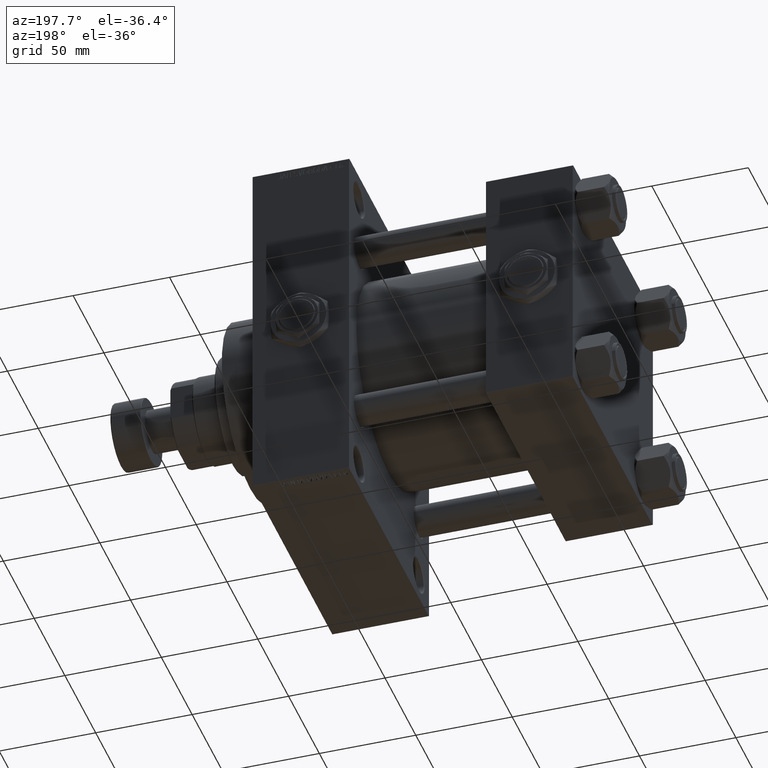
[diagram: clean part render]
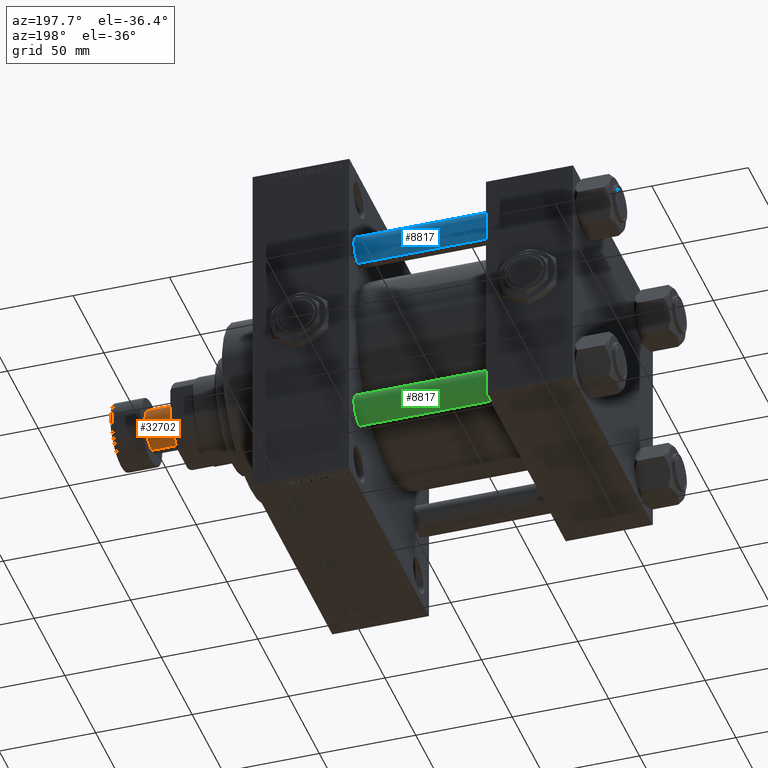
[diagram: same view with three faces highlighted in distinct colors, each labeled with its STEP entity id]
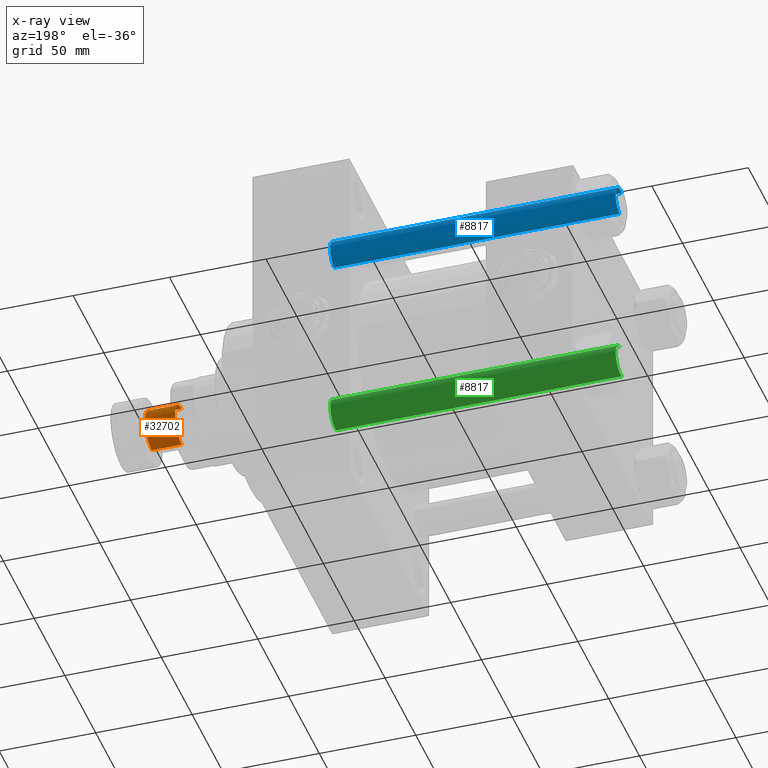
[diagram: x-ray of the same camera — body ghosted, the three highlighted faces saturated]
A machine part, auxiliary view with three faces highlighted in distinct colors.
The next image is the same camera in x-ray (body ghosted, the three faces saturated) — at least one of them is partly hidden behind the body in this view.
Their STEP definitions:

[orange] entity #32702 — the highlighted cylindrical surface (edge-blend (fillet) strip) has radius 11 mm, axis along (1, 0, 0).
#1773 = CARTESIAN_POINT ( 'NONE',  ( -11.00000000000000000, 1.347111479062088405E-15, -16.00000000000000000 ) ) ;
#5446 = CARTESIAN_POINT ( 'NONE',  ( 11.00000000000000000, 0.000000000000000000, -31.50000000000000000 ) ) ;
#5500 = CARTESIAN_POINT ( 'NONE',  ( 0.000000000000000000, 0.000000000000000000, -31.50000000000000000 ) ) ;
#6845 = CIRCLE ( 'NONE', #24676, 11.00000000000000000 ) ;
#10215 = DIRECTION ( 'NONE',  ( 0.000000000000000000, 0.000000000000000000, -1.000000000000000000 ) ) ;
#10941 = ORIENTED_EDGE ( 'NONE', *, *, #30322, .T. ) ;
#15684 = DIRECTION ( 'NONE',  ( -0.000000000000000000, -0.000000000000000000, 1.000000000000000000 ) ) ;
#16969 = EDGE_CURVE ( 'NONE', #37035, #18162, #24740, .T. ) ;
#18162 = VERTEX_POINT ( 'NONE', #35306 ) ;
#20928 = DIRECTION ( 'NONE',  ( -0.000000000000000000, -0.000000000000000000, 1.000000000000000000 ) ) ;
#21878 = DIRECTION ( 'NONE',  ( -1.000000000000000000, 0.000000000000000000, 0.000000000000000000 ) ) ;
#21950 = VECTOR ( 'NONE', #15684, 1000.000000000000000 ) ;
#21988 = DIRECTION ( 'NONE',  ( 1.000000000000000000, 0.000000000000000000, 0.000000000000000000 ) ) ;
#22820 = CIRCLE ( 'NONE', #25244, 11.00000000000000000 ) ;
#23556 = CARTESIAN_POINT ( 'NONE',  ( -11.00000000000000000, 1.347111479062088405E-15, -31.50000000000000000 ) ) ;
#24676 = AXIS2_PLACEMENT_3D ( 'NONE', #45762, #33574, #41693 ) ;
#24740 = LINE ( 'NONE', #5446, #26452 ) ;
#25244 = AXIS2_PLACEMENT_3D ( 'NONE', #25937, #10215, #21878 ) ;
#25797 = CYLINDRICAL_SURFACE ( 'NONE', #29310, 11.00000000000000000 ) ;
#25937 = CARTESIAN_POINT ( 'NONE',  ( 0.000000000000000000, 0.000000000000000000, -16.00000000000000000 ) ) ;
#26452 = VECTOR ( 'NONE', #20928, 1000.000000000000000 ) ;
#27407 = VERTEX_POINT ( 'NONE', #1773 ) ;
#27539 = ORIENTED_EDGE ( 'NONE', *, *, #16969, .F. ) ;
#28937 = CARTESIAN_POINT ( 'NONE',  ( -11.00000000000000000, 1.347111479062088405E-15, -31.50000000000000000 ) ) ;
#29310 = AXIS2_PLACEMENT_3D ( 'NONE', #5500, #29858, #21988 ) ;
#29858 = DIRECTION ( 'NONE',  ( -0.000000000000000000, -0.000000000000000000, 1.000000000000000000 ) ) ;
#30322 = EDGE_CURVE ( 'NONE', #41272, #27407, #35232, .T. ) ;
#32155 = EDGE_CURVE ( 'NONE', #27407, #18162, #22820, .T. ) ;
#32702 = ADVANCED_FACE ( 'NONE', ( #45096 ), #25797, .T. ) ;
#33574 = DIRECTION ( 'NONE',  ( 0.000000000000000000, 0.000000000000000000, -1.000000000000000000 ) ) ;
#35232 = LINE ( 'NONE', #23556, #21950 ) ;
#35306 = CARTESIAN_POINT ( 'NONE',  ( 11.00000000000000000, 0.000000000000000000, -16.00000000000000000 ) ) ;
#35641 = ORIENTED_EDGE ( 'NONE', *, *, #48666, .F. ) ;
#35922 = CARTESIAN_POINT ( 'NONE',  ( 11.00000000000000000, 0.000000000000000000, -31.50000000000000000 ) ) ;
#37035 = VERTEX_POINT ( 'NONE', #35922 ) ;
#41272 = VERTEX_POINT ( 'NONE', #28937 ) ;
#41693 = DIRECTION ( 'NONE',  ( -1.000000000000000000, 0.000000000000000000, 0.000000000000000000 ) ) ;
#42316 = EDGE_LOOP ( 'NONE', ( #35641, #10941, #42334, #27539 ) ) ;
#42334 = ORIENTED_EDGE ( 'NONE', *, *, #32155, .T. ) ;
#45096 = FACE_OUTER_BOUND ( 'NONE', #42316, .T. ) ;
#45762 = CARTESIAN_POINT ( 'NONE',  ( 0.000000000000000000, 0.000000000000000000, -31.50000000000000000 ) ) ;
#48666 = EDGE_CURVE ( 'NONE', #41272, #37035, #6845, .T. ) ;

[blue] entity #8817 — the highlighted cylindrical surface (edge-blend (fillet) strip) has radius 8 mm, axis along (-1, -0, 0).
#921 = CIRCLE ( 'NONE', #5805, 8.000000000000000000 ) ;
#1799 = AXIS2_PLACEMENT_3D ( 'NONE', #43676, #24625, #39866 ) ;
#1893 = LINE ( 'NONE', #24505, #22910 ) ;
#3998 = VERTEX_POINT ( 'NONE', #42510 ) ;
#5805 = AXIS2_PLACEMENT_3D ( 'NONE', #39533, #32403, #28108 ) ;
#6159 = VERTEX_POINT ( 'NONE', #26197 ) ;
#7088 = LINE ( 'NONE', #29692, #18124 ) ;
#8399 = CYLINDRICAL_SURFACE ( 'NONE', #1799, 8.000000000000000000 ) ;
#8817 = ADVANCED_FACE ( 'NONE', ( #46985 ), #8399, .T. ) ;
#8984 = EDGE_CURVE ( 'NONE', #3998, #47586, #1893, .T. ) ;
#10899 = DIRECTION ( 'NONE',  ( -0.000000000000000000, -0.000000000000000000, -1.000000000000000000 ) ) ;
#11290 = CARTESIAN_POINT ( 'NONE',  ( 8.000000000000000000, 9.797174393178825657E-16, 0.5000000000000281997 ) ) ;
#15142 = CARTESIAN_POINT ( 'NONE',  ( 0.000000000000000000, 0.000000000000000000, 0.5000000000000281997 ) ) ;
#18124 = VECTOR ( 'NONE', #10899, 1000.000000000000000 ) ;
#18219 = CARTESIAN_POINT ( 'NONE',  ( -8.000000000000000000, 0.000000000000000000, 0.5000000000000281997 ) ) ;
#22910 = VECTOR ( 'NONE', #32369, 1000.000000000000000 ) ;
#24433 = CIRCLE ( 'NONE', #46330, 8.000000000000000000 ) ;
#24505 = CARTESIAN_POINT ( 'NONE',  ( 8.000000000000000000, 9.797174393178825657E-16, 149.0000000000000000 ) ) ;
#24625 = DIRECTION ( 'NONE',  ( -0.000000000000000000, -0.000000000000000000, -1.000000000000000000 ) ) ;
#26167 = ORIENTED_EDGE ( 'NONE', *, *, #38403, .T. ) ;
#26197 = CARTESIAN_POINT ( 'NONE',  ( -8.000000000000000000, 0.000000000000000000, 148.5000000000000000 ) ) ;
#28108 = DIRECTION ( 'NONE',  ( 1.000000000000000000, 0.000000000000000000, 0.000000000000000000 ) ) ;
#28411 = ORIENTED_EDGE ( 'NONE', *, *, #42596, .T. ) ;
#29692 = CARTESIAN_POINT ( 'NONE',  ( -8.000000000000000000, 0.000000000000000000, 149.0000000000000000 ) ) ;
#32369 = DIRECTION ( 'NONE',  ( -0.000000000000000000, -0.000000000000000000, -1.000000000000000000 ) ) ;
#32403 = DIRECTION ( 'NONE',  ( 0.000000000000000000, 0.000000000000000000, -1.000000000000000000 ) ) ;
#38403 = EDGE_CURVE ( 'NONE', #47586, #46265, #24433, .T. ) ;
#39533 = CARTESIAN_POINT ( 'NONE',  ( 0.000000000000000000, 0.000000000000000000, 148.5000000000000000 ) ) ;
#39866 = DIRECTION ( 'NONE',  ( -1.000000000000000000, 0.000000000000000000, 0.000000000000000000 ) ) ;
#40702 = ORIENTED_EDGE ( 'NONE', *, *, #47004, .F. ) ;
#40822 = ORIENTED_EDGE ( 'NONE', *, *, #8984, .T. ) ;
#42510 = CARTESIAN_POINT ( 'NONE',  ( 8.000000000000000000, 9.797174393178825657E-16, 148.5000000000000000 ) ) ;
#42596 = EDGE_CURVE ( 'NONE', #6159, #3998, #921, .T. ) ;
#43209 = EDGE_LOOP ( 'NONE', ( #28411, #40822, #26167, #40702 ) ) ;
#43676 = CARTESIAN_POINT ( 'NONE',  ( 0.000000000000000000, 0.000000000000000000, 149.0000000000000000 ) ) ;
#45370 = DIRECTION ( 'NONE',  ( 1.000000000000000000, 0.000000000000000000, 0.000000000000000000 ) ) ;
#46124 = DIRECTION ( 'NONE',  ( -0.000000000000000000, -0.000000000000000000, 1.000000000000000000 ) ) ;
#46265 = VERTEX_POINT ( 'NONE', #18219 ) ;
#46330 = AXIS2_PLACEMENT_3D ( 'NONE', #15142, #46124, #45370 ) ;
#46985 = FACE_OUTER_BOUND ( 'NONE', #43209, .T. ) ;
#47004 = EDGE_CURVE ( 'NONE', #6159, #46265, #7088, .T. ) ;
#47586 = VERTEX_POINT ( 'NONE', #11290 ) ;

[green] entity #8817 — the highlighted cylindrical surface (edge-blend (fillet) strip) has radius 8 mm, axis along (1, -0, 0).
#921 = CIRCLE ( 'NONE', #5805, 8.000000000000000000 ) ;
#1799 = AXIS2_PLACEMENT_3D ( 'NONE', #43676, #24625, #39866 ) ;
#1893 = LINE ( 'NONE', #24505, #22910 ) ;
#3998 = VERTEX_POINT ( 'NONE', #42510 ) ;
#5805 = AXIS2_PLACEMENT_3D ( 'NONE', #39533, #32403, #28108 ) ;
#6159 = VERTEX_POINT ( 'NONE', #26197 ) ;
#7088 = LINE ( 'NONE', #29692, #18124 ) ;
#8399 = CYLINDRICAL_SURFACE ( 'NONE', #1799, 8.000000000000000000 ) ;
#8817 = ADVANCED_FACE ( 'NONE', ( #46985 ), #8399, .T. ) ;
#8984 = EDGE_CURVE ( 'NONE', #3998, #47586, #1893, .T. ) ;
#10899 = DIRECTION ( 'NONE',  ( -0.000000000000000000, -0.000000000000000000, -1.000000000000000000 ) ) ;
#11290 = CARTESIAN_POINT ( 'NONE',  ( 8.000000000000000000, 9.797174393178825657E-16, 0.5000000000000281997 ) ) ;
#15142 = CARTESIAN_POINT ( 'NONE',  ( 0.000000000000000000, 0.000000000000000000, 0.5000000000000281997 ) ) ;
#18124 = VECTOR ( 'NONE', #10899, 1000.000000000000000 ) ;
#18219 = CARTESIAN_POINT ( 'NONE',  ( -8.000000000000000000, 0.000000000000000000, 0.5000000000000281997 ) ) ;
#22910 = VECTOR ( 'NONE', #32369, 1000.000000000000000 ) ;
#24433 = CIRCLE ( 'NONE', #46330, 8.000000000000000000 ) ;
#24505 = CARTESIAN_POINT ( 'NONE',  ( 8.000000000000000000, 9.797174393178825657E-16, 149.0000000000000000 ) ) ;
#24625 = DIRECTION ( 'NONE',  ( -0.000000000000000000, -0.000000000000000000, -1.000000000000000000 ) ) ;
#26167 = ORIENTED_EDGE ( 'NONE', *, *, #38403, .T. ) ;
#26197 = CARTESIAN_POINT ( 'NONE',  ( -8.000000000000000000, 0.000000000000000000, 148.5000000000000000 ) ) ;
#28108 = DIRECTION ( 'NONE',  ( 1.000000000000000000, 0.000000000000000000, 0.000000000000000000 ) ) ;
#28411 = ORIENTED_EDGE ( 'NONE', *, *, #42596, .T. ) ;
#29692 = CARTESIAN_POINT ( 'NONE',  ( -8.000000000000000000, 0.000000000000000000, 149.0000000000000000 ) ) ;
#32369 = DIRECTION ( 'NONE',  ( -0.000000000000000000, -0.000000000000000000, -1.000000000000000000 ) ) ;
#32403 = DIRECTION ( 'NONE',  ( 0.000000000000000000, 0.000000000000000000, -1.000000000000000000 ) ) ;
#38403 = EDGE_CURVE ( 'NONE', #47586, #46265, #24433, .T. ) ;
#39533 = CARTESIAN_POINT ( 'NONE',  ( 0.000000000000000000, 0.000000000000000000, 148.5000000000000000 ) ) ;
#39866 = DIRECTION ( 'NONE',  ( -1.000000000000000000, 0.000000000000000000, 0.000000000000000000 ) ) ;
#40702 = ORIENTED_EDGE ( 'NONE', *, *, #47004, .F. ) ;
#40822 = ORIENTED_EDGE ( 'NONE', *, *, #8984, .T. ) ;
#42510 = CARTESIAN_POINT ( 'NONE',  ( 8.000000000000000000, 9.797174393178825657E-16, 148.5000000000000000 ) ) ;
#42596 = EDGE_CURVE ( 'NONE', #6159, #3998, #921, .T. ) ;
#43209 = EDGE_LOOP ( 'NONE', ( #28411, #40822, #26167, #40702 ) ) ;
#43676 = CARTESIAN_POINT ( 'NONE',  ( 0.000000000000000000, 0.000000000000000000, 149.0000000000000000 ) ) ;
#45370 = DIRECTION ( 'NONE',  ( 1.000000000000000000, 0.000000000000000000, 0.000000000000000000 ) ) ;
#46124 = DIRECTION ( 'NONE',  ( -0.000000000000000000, -0.000000000000000000, 1.000000000000000000 ) ) ;
#46265 = VERTEX_POINT ( 'NONE', #18219 ) ;
#46330 = AXIS2_PLACEMENT_3D ( 'NONE', #15142, #46124, #45370 ) ;
#46985 = FACE_OUTER_BOUND ( 'NONE', #43209, .T. ) ;
#47004 = EDGE_CURVE ( 'NONE', #6159, #46265, #7088, .T. ) ;
#47586 = VERTEX_POINT ( 'NONE', #11290 ) ;